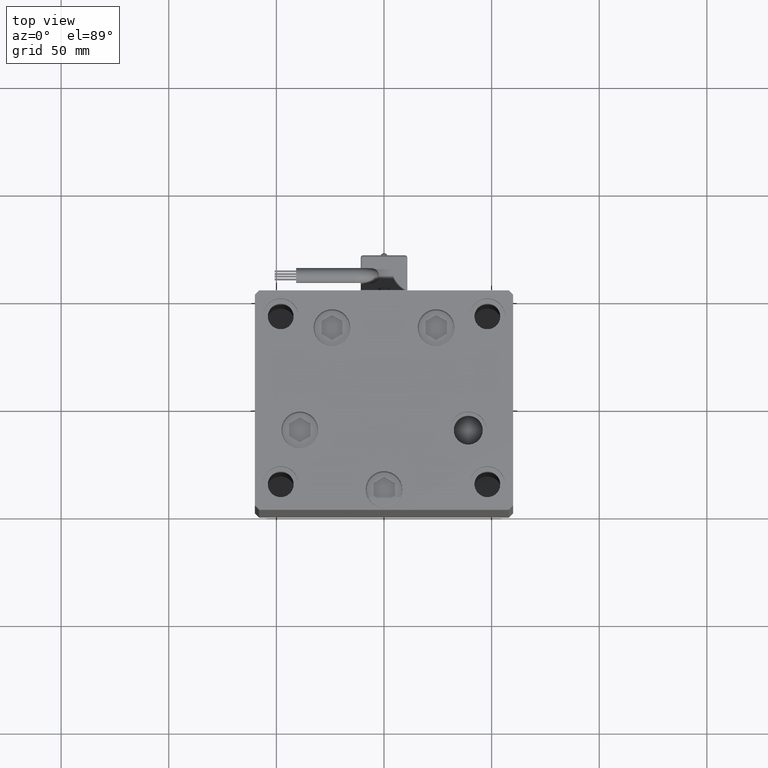
[diagram: clean part render]
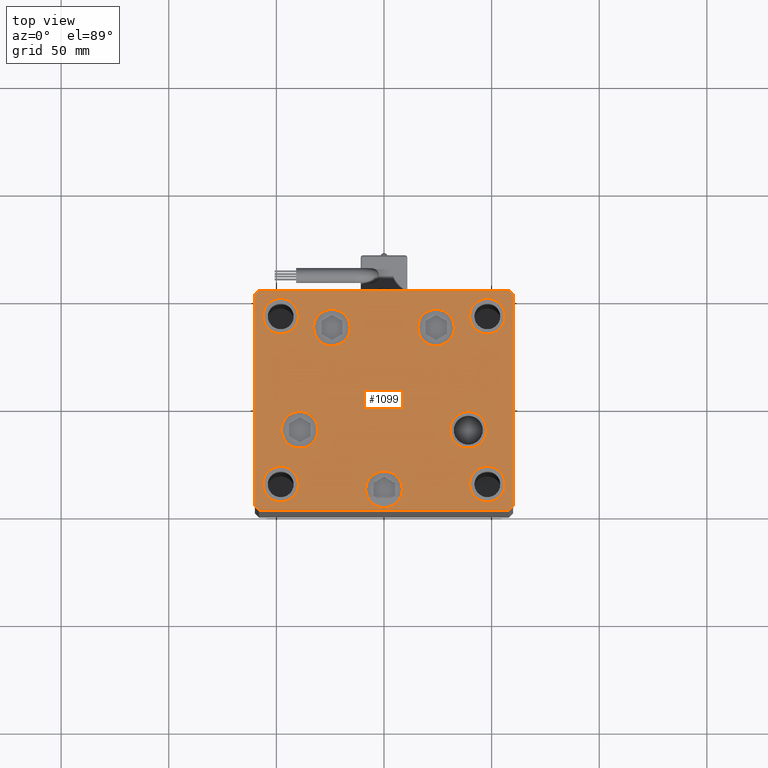
[diagram: same view with one face highlighted and labeled with its STEP entity id]
A machine part, top view. The second image highlights one B-rep face of the part: STEP entity #1099.
In plain terms, the highlighted planar face has unit normal (0, 0, 1).
Its self-contained STEP definition (entity closure, byte-faithful):
#112 = CARTESIAN_POINT ( 'NONE',  ( 48.00000000000000000, 38.99999999999999289, 0.000000000000000000 ) ) ;
#434 = CARTESIAN_POINT ( 'NONE',  ( -39.75000000000000711, -39.00000000000000000, 0.000000000000000000 ) ) ;
#558 = DIRECTION ( 'NONE',  ( 1.000000000000000000, 0.000000000000000000, 0.000000000000000000 ) ) ;
#723 = DIRECTION ( 'NONE',  ( 0.000000000000000000, -0.000000000000000000, -1.000000000000000000 ) ) ;
#727 = CARTESIAN_POINT ( 'NONE',  ( -48.00000000000000000, 39.00000000000000000, 0.000000000000000000 ) ) ;
#897 = ORIENTED_EDGE ( 'NONE', *, *, #45901, .T. ) ;
#1043 = CARTESIAN_POINT ( 'NONE',  ( -57.99999999999999289, 50.99999999999997868, 0.000000000000000000 ) ) ;
#1099 = ADVANCED_FACE ( 'NONE', ( #46894, #38730, #38457, #51239, #43079, #43615, #1224, #10180, #14524, #2038 ), #34914, .T. ) ;
#1187 = DIRECTION ( 'NONE',  ( 1.000000000000000000, 0.000000000000000000, 0.000000000000000000 ) ) ;
#1224 = FACE_BOUND ( 'NONE', #19232, .T. ) ;
#2038 = FACE_OUTER_BOUND ( 'NONE', #10919, .T. ) ;
#2090 = AXIS2_PLACEMENT_3D ( 'NONE', #23674, #19586, #558 ) ;
#2206 = CARTESIAN_POINT ( 'NONE',  ( 56.24999999999999289, -38.99999999999999289, 0.000000000000000000 ) ) ;
#2561 = ORIENTED_EDGE ( 'NONE', *, *, #52038, .F. ) ;
#2848 = CARTESIAN_POINT ( 'NONE',  ( 59.99999999999994316, 49.00000000000000000, 0.000000000000000000 ) ) ;
#3221 = VECTOR ( 'NONE', #52820, 1000.000000000000000 ) ;
#3396 = CARTESIAN_POINT ( 'NONE',  ( 57.99999999999993605, 51.00000000000000711, 0.000000000000000000 ) ) ;
#3406 = CARTESIAN_POINT ( 'NONE',  ( -39.75000000000000711, 39.00000000000000000, 0.000000000000000000 ) ) ;
#3460 = EDGE_LOOP ( 'NONE', ( #12076, #39726 ) ) ;
#3993 = AXIS2_PLACEMENT_3D ( 'NONE', #31157, #5864, #38491 ) ;
#4216 = VERTEX_POINT ( 'NONE', #37612 ) ;
#4966 = DIRECTION ( 'NONE',  ( 0.000000000000000000, 0.000000000000000000, 1.000000000000000000 ) ) ;
#5042 = DIRECTION ( 'NONE',  ( 0.000000000000000000, 0.000000000000000000, 1.000000000000000000 ) ) ;
#5248 = EDGE_CURVE ( 'NONE', #50367, #26316, #17673, .T. ) ;
#5372 = VERTEX_POINT ( 'NONE', #1043 ) ;
#5575 = DIRECTION ( 'NONE',  ( 1.000000000000000000, 0.000000000000000000, 0.000000000000000000 ) ) ;
#5864 = DIRECTION ( 'NONE',  ( 0.000000000000000000, -0.000000000000000000, -1.000000000000000000 ) ) ;
#5936 = DIRECTION ( 'NONE',  ( 0.000000000000000000, -0.000000000000000000, -1.000000000000000000 ) ) ;
#6187 = VERTEX_POINT ( 'NONE', #26987 ) ;
#6216 = AXIS2_PLACEMENT_3D ( 'NONE', #21369, #723, #13481 ) ;
#6504 = VERTEX_POINT ( 'NONE', #15154 ) ;
#6558 = AXIS2_PLACEMENT_3D ( 'NONE', #40745, #32582, #20864 ) ;
#6603 = CIRCLE ( 'NONE', #3993, 8.500000000000000000 ) ;
#6684 = AXIS2_PLACEMENT_3D ( 'NONE', #44223, #14323, #22756 ) ;
#6720 = DIRECTION ( 'NONE',  ( 0.000000000000000000, -0.000000000000000000, -1.000000000000000000 ) ) ;
#6727 = EDGE_LOOP ( 'NONE', ( #50048, #2561 ) ) ;
#6792 = EDGE_CURVE ( 'NONE', #28416, #6187, #43827, .T. ) ;
#6867 = EDGE_CURVE ( 'NONE', #6504, #5372, #36555, .T. ) ;
#7056 = CARTESIAN_POINT ( 'NONE',  ( -47.62657522565562829, -13.83333333333333925, 0.000000000000000000 ) ) ;
#7098 = CIRCLE ( 'NONE', #6216, 8.500000000000000000 ) ;
#7324 = DIRECTION ( 'NONE',  ( 0.7071067811865474617, -0.7071067811865474617, 0.000000000000000000 ) ) ;
#7524 = CARTESIAN_POINT ( 'NONE',  ( -56.24999999999999289, -39.00000000000000000, 0.000000000000000000 ) ) ;
#8027 = EDGE_CURVE ( 'NONE', #39483, #6504, #23493, .T. ) ;
#8130 = CARTESIAN_POINT ( 'NONE',  ( -60.00000000000000000, -49.00000000000000000, 0.000000000000000000 ) ) ;
#8175 = CIRCLE ( 'NONE', #13382, 8.500000000000000000 ) ;
#9229 = AXIS2_PLACEMENT_3D ( 'NONE', #14089, #5936, #30964 ) ;
#9559 = ORIENTED_EDGE ( 'NONE', *, *, #23077, .T. ) ;
#9842 = VERTEX_POINT ( 'NONE', #7056 ) ;
#9875 = CARTESIAN_POINT ( 'NONE',  ( 58.00000000000000000, -51.00000000000000711, 0.000000000000000000 ) ) ;
#10180 = FACE_BOUND ( 'NONE', #6727, .T. ) ;
#10231 = EDGE_CURVE ( 'NONE', #29172, #42426, #6603, .T. ) ;
#10373 = ORIENTED_EDGE ( 'NONE', *, *, #46465, .F. ) ;
#10430 = EDGE_CURVE ( 'NONE', #4216, #44299, #47610, .T. ) ;
#10705 = EDGE_CURVE ( 'NONE', #6187, #28416, #37016, .T. ) ;
#10812 = VERTEX_POINT ( 'NONE', #434 ) ;
#10919 = EDGE_LOOP ( 'NONE', ( #35826, #28829, #897, #38796, #24948, #36148, #27493, #36987 ) ) ;
#10983 = AXIS2_PLACEMENT_3D ( 'NONE', #112, #20756, #1187 ) ;
#11149 = EDGE_CURVE ( 'NONE', #47341, #38540, #52666, .T. ) ;
#11226 = DIRECTION ( 'NONE',  ( 0.000000000000000000, 0.000000000000000000, 1.000000000000000000 ) ) ;
#11708 = VECTOR ( 'NONE', #39284, 1000.000000000000000 ) ;
#11755 = LINE ( 'NONE', #36500, #3221 ) ;
#12076 = ORIENTED_EDGE ( 'NONE', *, *, #11149, .F. ) ;
#12198 = CARTESIAN_POINT ( 'NONE',  ( -24.19288941894912170, 33.71875000000000000, 0.000000000000000000 ) ) ;
#12294 = EDGE_CURVE ( 'NONE', #19099, #53225, #11755, .T. ) ;
#12414 = DIRECTION ( 'NONE',  ( 0.000000000000000000, 0.000000000000000000, 1.000000000000000000 ) ) ;
#13382 = AXIS2_PLACEMENT_3D ( 'NONE', #22843, #43505, #31021 ) ;
#13481 = DIRECTION ( 'NONE',  ( 1.000000000000000000, 0.000000000000000000, 0.000000000000000000 ) ) ;
#13612 = EDGE_CURVE ( 'NONE', #30384, #15955, #24864, .T. ) ;
#13803 = ORIENTED_EDGE ( 'NONE', *, *, #10705, .T. ) ;
#14089 = CARTESIAN_POINT ( 'NONE',  ( 5.082284216461515748E-15, -41.50000000000000000, 0.000000000000000000 ) ) ;
#14224 = DIRECTION ( 'NONE',  ( 1.000000000000000000, 0.000000000000000000, 0.000000000000000000 ) ) ;
#14248 = DIRECTION ( 'NONE',  ( 1.000000000000000000, 0.000000000000000000, 0.000000000000000000 ) ) ;
#14323 = DIRECTION ( 'NONE',  ( 0.000000000000000000, 0.000000000000000000, 1.000000000000000000 ) ) ;
#14524 = FACE_BOUND ( 'NONE', #3460, .T. ) ;
#14828 = CARTESIAN_POINT ( 'NONE',  ( 5.082284216461515748E-15, -41.50000000000000000, 0.000000000000000000 ) ) ;
#15154 = CARTESIAN_POINT ( 'NONE',  ( 57.99999999999993605, 51.00000000000000711, 0.000000000000000000 ) ) ;
#15392 = DIRECTION ( 'NONE',  ( 1.000000000000000000, 0.000000000000000000, 0.000000000000000000 ) ) ;
#15394 = CARTESIAN_POINT ( 'NONE',  ( 8.500000000000005329, -41.50000000000000000, 0.000000000000000000 ) ) ;
#15653 = CARTESIAN_POINT ( 'NONE',  ( -32.69288941894912170, 33.71875000000000000, 0.000000000000000000 ) ) ;
#15684 = EDGE_LOOP ( 'NONE', ( #19690, #30678 ) ) ;
#15955 = VERTEX_POINT ( 'NONE', #31555 ) ;
#16162 = CARTESIAN_POINT ( 'NONE',  ( -57.99999999999997868, -51.00000000000001421, 0.000000000000000000 ) ) ;
#16280 = LINE ( 'NONE', #8130, #48133 ) ;
#16546 = EDGE_CURVE ( 'NONE', #23697, #39483, #46459, .T. ) ;
#16558 = CARTESIAN_POINT ( 'NONE',  ( 39.75000000000000711, 38.99999999999999289, 0.000000000000000000 ) ) ;
#16810 = VERTEX_POINT ( 'NONE', #7524 ) ;
#16870 = AXIS2_PLACEMENT_3D ( 'NONE', #50378, #4966, #41679 ) ;
#17673 = CIRCLE ( 'NONE', #34188, 8.500000000000000000 ) ;
#17790 = DIRECTION ( 'NONE',  ( 1.000000000000000000, 0.000000000000000000, 0.000000000000000000 ) ) ;
#18006 = CARTESIAN_POINT ( 'NONE',  ( 59.99999999999994316, 49.00000000000000000, 0.000000000000000000 ) ) ;
#18312 = CARTESIAN_POINT ( 'NONE',  ( 0.000000000000000000, 0.000000000000000000, 0.000000000000000000 ) ) ;
#19044 = VERTEX_POINT ( 'NONE', #3406 ) ;
#19099 = VERTEX_POINT ( 'NONE', #16162 ) ;
#19232 = EDGE_LOOP ( 'NONE', ( #10373, #46587 ) ) ;
#19237 = AXIS2_PLACEMENT_3D ( 'NONE', #22658, #11226, #14224 ) ;
#19561 = CARTESIAN_POINT ( 'NONE',  ( -30.62657522565562829, -13.83333333333333748, 0.000000000000000000 ) ) ;
#19586 = DIRECTION ( 'NONE',  ( 0.000000000000000000, -0.000000000000000000, -1.000000000000000000 ) ) ;
#19690 = ORIENTED_EDGE ( 'NONE', *, *, #48553, .F. ) ;
#20336 = DIRECTION ( 'NONE',  ( 0.000000000000000000, -0.000000000000000000, -1.000000000000000000 ) ) ;
#20416 = DIRECTION ( 'NONE',  ( -0.7071067811865451302, -0.7071067811865500152, 0.000000000000000000 ) ) ;
#20756 = DIRECTION ( 'NONE',  ( 0.000000000000000000, 0.000000000000000000, 1.000000000000000000 ) ) ;
#20789 = CIRCLE ( 'NONE', #41648, 8.500000000000000000 ) ;
#20864 = DIRECTION ( 'NONE',  ( 1.000000000000000000, 0.000000000000000000, 0.000000000000000000 ) ) ;
#20988 = ORIENTED_EDGE ( 'NONE', *, *, #10231, .T. ) ;
#21227 = CIRCLE ( 'NONE', #16870, 8.249999999999992895 ) ;
#21369 = CARTESIAN_POINT ( 'NONE',  ( -39.12657522565562829, -13.83333333333333925, 0.000000000000000000 ) ) ;
#21794 = EDGE_LOOP ( 'NONE', ( #13803, #37985 ) ) ;
#22638 = CARTESIAN_POINT ( 'NONE',  ( -60.00000000000000000, -49.00000000000000000, 0.000000000000000000 ) ) ;
#22658 = CARTESIAN_POINT ( 'NONE',  ( 48.00000000000000000, -38.99999999999999289, 0.000000000000000000 ) ) ;
#22756 = DIRECTION ( 'NONE',  ( 1.000000000000000000, 0.000000000000000000, 0.000000000000000000 ) ) ;
#22763 = CARTESIAN_POINT ( 'NONE',  ( 32.69288941894911460, 33.71875000000000711, 0.000000000000000000 ) ) ;
#22843 = CARTESIAN_POINT ( 'NONE',  ( 24.19288941894911460, 33.71875000000000711, 0.000000000000000000 ) ) ;
#23077 = EDGE_CURVE ( 'NONE', #41074, #9842, #7098, .T. ) ;
#23126 = AXIS2_PLACEMENT_3D ( 'NONE', #31395, #30315, #17790 ) ;
#23270 = CARTESIAN_POINT ( 'NONE',  ( 30.62657522565563184, -13.83333333333332860, 0.000000000000000000 ) ) ;
#23493 = LINE ( 'NONE', #2848, #11708 ) ;
#23674 = CARTESIAN_POINT ( 'NONE',  ( 39.12657522565562829, -13.83333333333332860, 0.000000000000000000 ) ) ;
#23697 = VERTEX_POINT ( 'NONE', #25047 ) ;
#23717 = EDGE_CURVE ( 'NONE', #5372, #4216, #41638, .T. ) ;
#24420 = CARTESIAN_POINT ( 'NONE',  ( 39.75000000000000711, -38.99999999999999289, 0.000000000000000000 ) ) ;
#24864 = CIRCLE ( 'NONE', #23126, 8.499999999999992895 ) ;
#24948 = ORIENTED_EDGE ( 'NONE', *, *, #8027, .T. ) ;
#25047 = CARTESIAN_POINT ( 'NONE',  ( 60.00000000000001421, -48.99999999999999289, 0.000000000000000000 ) ) ;
#25427 = DIRECTION ( 'NONE',  ( 0.000000000000000000, -0.000000000000000000, -1.000000000000000000 ) ) ;
#25883 = EDGE_LOOP ( 'NONE', ( #53010, #49240 ) ) ;
#26316 = VERTEX_POINT ( 'NONE', #15653 ) ;
#26987 = CARTESIAN_POINT ( 'NONE',  ( -8.499999999999994671, -41.50000000000000000, 0.000000000000000000 ) ) ;
#27369 = EDGE_CURVE ( 'NONE', #9842, #41074, #20789, .T. ) ;
#27493 = ORIENTED_EDGE ( 'NONE', *, *, #23717, .T. ) ;
#28348 = CIRCLE ( 'NONE', #39673, 8.249999999999992895 ) ;
#28416 = VERTEX_POINT ( 'NONE', #15394 ) ;
#28829 = ORIENTED_EDGE ( 'NONE', *, *, #12294, .T. ) ;
#28849 = VERTEX_POINT ( 'NONE', #24420 ) ;
#29172 = VERTEX_POINT ( 'NONE', #22763 ) ;
#29786 = CARTESIAN_POINT ( 'NONE',  ( -39.12657522565562829, -13.83333333333333925, 0.000000000000000000 ) ) ;
#30240 = VECTOR ( 'NONE', #20416, 1000.000000000000114 ) ;
#30315 = DIRECTION ( 'NONE',  ( 0.000000000000000000, -0.000000000000000000, -1.000000000000000000 ) ) ;
#30384 = VERTEX_POINT ( 'NONE', #23270 ) ;
#30585 = DIRECTION ( 'NONE',  ( 1.000000000000000000, 0.000000000000000000, 0.000000000000000000 ) ) ;
#30678 = ORIENTED_EDGE ( 'NONE', *, *, #30723, .F. ) ;
#30723 = EDGE_CURVE ( 'NONE', #28849, #34302, #42681, .T. ) ;
#30964 = DIRECTION ( 'NONE',  ( 1.000000000000000000, 0.000000000000000000, 0.000000000000000000 ) ) ;
#30977 = CIRCLE ( 'NONE', #6558, 8.249999999999992895 ) ;
#31021 = DIRECTION ( 'NONE',  ( 1.000000000000000000, 0.000000000000000000, 0.000000000000000000 ) ) ;
#31157 = CARTESIAN_POINT ( 'NONE',  ( 24.19288941894911460, 33.71875000000000711, 0.000000000000000000 ) ) ;
#31318 = EDGE_LOOP ( 'NONE', ( #53499, #20988 ) ) ;
#31395 = CARTESIAN_POINT ( 'NONE',  ( 39.12657522565562829, -13.83333333333332860, 0.000000000000000000 ) ) ;
#31555 = CARTESIAN_POINT ( 'NONE',  ( 47.62657522565562118, -13.83333333333332682, 0.000000000000000000 ) ) ;
#32078 = ORIENTED_EDGE ( 'NONE', *, *, #13612, .T. ) ;
#32582 = DIRECTION ( 'NONE',  ( 0.000000000000000000, 0.000000000000000000, 1.000000000000000000 ) ) ;
#33020 = DIRECTION ( 'NONE',  ( -1.000000000000000000, -2.392722035830079958E-16, 0.000000000000000000 ) ) ;
#33122 = CARTESIAN_POINT ( 'NONE',  ( 15.69288941894910927, 33.71875000000000711, 0.000000000000000000 ) ) ;
#34188 = AXIS2_PLACEMENT_3D ( 'NONE', #12198, #20336, #41563 ) ;
#34207 = ORIENTED_EDGE ( 'NONE', *, *, #27369, .T. ) ;
#34264 = AXIS2_PLACEMENT_3D ( 'NONE', #14828, #48541, #36034 ) ;
#34302 = VERTEX_POINT ( 'NONE', #2206 ) ;
#34675 = CARTESIAN_POINT ( 'NONE',  ( 48.00000000000000000, 38.99999999999999289, 0.000000000000000000 ) ) ;
#34914 = PLANE ( 'NONE',  #46201 ) ;
#35156 = VECTOR ( 'NONE', #33020, 1000.000000000000000 ) ;
#35826 = ORIENTED_EDGE ( 'NONE', *, *, #40067, .T. ) ;
#35913 = CIRCLE ( 'NONE', #2090, 8.499999999999992895 ) ;
#36034 = DIRECTION ( 'NONE',  ( 1.000000000000000000, 0.000000000000000000, 0.000000000000000000 ) ) ;
#36148 = ORIENTED_EDGE ( 'NONE', *, *, #6867, .T. ) ;
#36500 = CARTESIAN_POINT ( 'NONE',  ( -57.99999999999997868, -51.00000000000001421, 0.000000000000000000 ) ) ;
#36555 = LINE ( 'NONE', #3396, #35156 ) ;
#36813 = EDGE_LOOP ( 'NONE', ( #34207, #9559 ) ) ;
#36987 = ORIENTED_EDGE ( 'NONE', *, *, #10430, .T. ) ;
#37016 = CIRCLE ( 'NONE', #9229, 8.500000000000000000 ) ;
#37612 = CARTESIAN_POINT ( 'NONE',  ( -60.00000000000000000, 48.99999999999995737, 0.000000000000000000 ) ) ;
#37832 = AXIS2_PLACEMENT_3D ( 'NONE', #34675, #5042, #5575 ) ;
#37985 = ORIENTED_EDGE ( 'NONE', *, *, #6792, .T. ) ;
#38140 = VERTEX_POINT ( 'NONE', #52300 ) ;
#38457 = FACE_BOUND ( 'NONE', #39123, .T. ) ;
#38491 = DIRECTION ( 'NONE',  ( 1.000000000000000000, 0.000000000000000000, 0.000000000000000000 ) ) ;
#38540 = VERTEX_POINT ( 'NONE', #16558 ) ;
#38606 = AXIS2_PLACEMENT_3D ( 'NONE', #727, #12414, #41771 ) ;
#38730 = FACE_BOUND ( 'NONE', #31318, .T. ) ;
#38796 = ORIENTED_EDGE ( 'NONE', *, *, #16546, .T. ) ;
#38842 = VECTOR ( 'NONE', #41025, 1000.000000000000000 ) ;
#39123 = EDGE_LOOP ( 'NONE', ( #32078, #50412 ) ) ;
#39284 = DIRECTION ( 'NONE',  ( -0.7071067811865487940, 0.7071067811865463515, 0.000000000000000000 ) ) ;
#39483 = VERTEX_POINT ( 'NONE', #18006 ) ;
#39673 = AXIS2_PLACEMENT_3D ( 'NONE', #44593, #48943, #39998 ) ;
#39726 = ORIENTED_EDGE ( 'NONE', *, *, #43886, .F. ) ;
#39961 = EDGE_CURVE ( 'NONE', #42426, #29172, #8175, .T. ) ;
#39998 = DIRECTION ( 'NONE',  ( 1.000000000000000000, 0.000000000000000000, 0.000000000000000000 ) ) ;
#40067 = EDGE_CURVE ( 'NONE', #44299, #19099, #16280, .T. ) ;
#40615 = EDGE_CURVE ( 'NONE', #19044, #38140, #42913, .T. ) ;
#40745 = CARTESIAN_POINT ( 'NONE',  ( -48.00000000000000000, -39.00000000000000000, 0.000000000000000000 ) ) ;
#41025 = DIRECTION ( 'NONE',  ( -7.080503983578803823E-16, 1.000000000000000000, 0.000000000000000000 ) ) ;
#41074 = VERTEX_POINT ( 'NONE', #19561 ) ;
#41104 = CARTESIAN_POINT ( 'NONE',  ( -57.99999999999999289, 50.99999999999997868, 0.000000000000000000 ) ) ;
#41563 = DIRECTION ( 'NONE',  ( 1.000000000000000000, 0.000000000000000000, 0.000000000000000000 ) ) ;
#41638 = LINE ( 'NONE', #41104, #30240 ) ;
#41648 = AXIS2_PLACEMENT_3D ( 'NONE', #29786, #25427, #30585 ) ;
#41679 = DIRECTION ( 'NONE',  ( 1.000000000000000000, 0.000000000000000000, 0.000000000000000000 ) ) ;
#41736 = CARTESIAN_POINT ( 'NONE',  ( 58.00000000000000000, -51.00000000000000711, 0.000000000000000000 ) ) ;
#41771 = DIRECTION ( 'NONE',  ( 1.000000000000000000, 0.000000000000000000, 0.000000000000000000 ) ) ;
#42135 = AXIS2_PLACEMENT_3D ( 'NONE', #48041, #6720, #15392 ) ;
#42426 = VERTEX_POINT ( 'NONE', #33122 ) ;
#42681 = CIRCLE ( 'NONE', #19237, 8.249999999999992895 ) ;
#42913 = CIRCLE ( 'NONE', #38606, 8.249999999999992895 ) ;
#43079 = FACE_BOUND ( 'NONE', #36813, .T. ) ;
#43246 = DIRECTION ( 'NONE',  ( 0.000000000000000000, -1.000000000000000000, 0.000000000000000000 ) ) ;
#43505 = DIRECTION ( 'NONE',  ( 0.000000000000000000, -0.000000000000000000, -1.000000000000000000 ) ) ;
#43593 = CARTESIAN_POINT ( 'NONE',  ( 56.24999999999999289, 38.99999999999999289, 0.000000000000000000 ) ) ;
#43615 = FACE_BOUND ( 'NONE', #15684, .T. ) ;
#43827 = CIRCLE ( 'NONE', #34264, 8.500000000000000000 ) ;
#43886 = EDGE_CURVE ( 'NONE', #38540, #47341, #43943, .T. ) ;
#43943 = CIRCLE ( 'NONE', #37832, 8.249999999999992895 ) ;
#44223 = CARTESIAN_POINT ( 'NONE',  ( -48.00000000000000000, -39.00000000000000000, 0.000000000000000000 ) ) ;
#44299 = VERTEX_POINT ( 'NONE', #22638 ) ;
#44593 = CARTESIAN_POINT ( 'NONE',  ( 48.00000000000000000, -38.99999999999999289, 0.000000000000000000 ) ) ;
#45826 = LINE ( 'NONE', #41736, #48243 ) ;
#45901 = EDGE_CURVE ( 'NONE', #53225, #23697, #45826, .T. ) ;
#46201 = AXIS2_PLACEMENT_3D ( 'NONE', #18312, #51508, #14248 ) ;
#46228 = EDGE_CURVE ( 'NONE', #16810, #10812, #30977, .T. ) ;
#46367 = DIRECTION ( 'NONE',  ( 0.7071067811865474617, 0.7071067811865474617, 0.000000000000000000 ) ) ;
#46459 = LINE ( 'NONE', #50266, #38842 ) ;
#46465 = EDGE_CURVE ( 'NONE', #10812, #16810, #50835, .T. ) ;
#46497 = CIRCLE ( 'NONE', #42135, 8.500000000000000000 ) ;
#46564 = EDGE_CURVE ( 'NONE', #26316, #50367, #46497, .T. ) ;
#46587 = ORIENTED_EDGE ( 'NONE', *, *, #46228, .F. ) ;
#46894 = FACE_BOUND ( 'NONE', #25883, .T. ) ;
#47341 = VERTEX_POINT ( 'NONE', #43593 ) ;
#47432 = VECTOR ( 'NONE', #43246, 1000.000000000000000 ) ;
#47610 = LINE ( 'NONE', #51406, #47432 ) ;
#48041 = CARTESIAN_POINT ( 'NONE',  ( -24.19288941894912170, 33.71875000000000000, 0.000000000000000000 ) ) ;
#48133 = VECTOR ( 'NONE', #7324, 1000.000000000000114 ) ;
#48243 = VECTOR ( 'NONE', #46367, 1000.000000000000114 ) ;
#48541 = DIRECTION ( 'NONE',  ( 0.000000000000000000, -0.000000000000000000, -1.000000000000000000 ) ) ;
#48553 = EDGE_CURVE ( 'NONE', #34302, #28849, #28348, .T. ) ;
#48943 = DIRECTION ( 'NONE',  ( 0.000000000000000000, 0.000000000000000000, 1.000000000000000000 ) ) ;
#49240 = ORIENTED_EDGE ( 'NONE', *, *, #5248, .T. ) ;
#49650 = EDGE_CURVE ( 'NONE', #15955, #30384, #35913, .T. ) ;
#50048 = ORIENTED_EDGE ( 'NONE', *, *, #40615, .F. ) ;
#50266 = CARTESIAN_POINT ( 'NONE',  ( 60.00000000000001421, -48.99999999999999289, 0.000000000000000000 ) ) ;
#50367 = VERTEX_POINT ( 'NONE', #53639 ) ;
#50378 = CARTESIAN_POINT ( 'NONE',  ( -48.00000000000000000, 39.00000000000000000, 0.000000000000000000 ) ) ;
#50412 = ORIENTED_EDGE ( 'NONE', *, *, #49650, .T. ) ;
#50835 = CIRCLE ( 'NONE', #6684, 8.249999999999992895 ) ;
#51239 = FACE_BOUND ( 'NONE', #21794, .T. ) ;
#51406 = CARTESIAN_POINT ( 'NONE',  ( -60.00000000000000000, 48.99999999999995737, 0.000000000000000000 ) ) ;
#51508 = DIRECTION ( 'NONE',  ( -0.000000000000000000, 0.000000000000000000, 1.000000000000000000 ) ) ;
#52038 = EDGE_CURVE ( 'NONE', #38140, #19044, #21227, .T. ) ;
#52300 = CARTESIAN_POINT ( 'NONE',  ( -56.24999999999999289, 39.00000000000000000, 0.000000000000000000 ) ) ;
#52666 = CIRCLE ( 'NONE', #10983, 8.249999999999992895 ) ;
#52820 = DIRECTION ( 'NONE',  ( 1.000000000000000000, 1.196361017915039486E-16, 0.000000000000000000 ) ) ;
#53010 = ORIENTED_EDGE ( 'NONE', *, *, #46564, .T. ) ;
#53225 = VERTEX_POINT ( 'NONE', #9875 ) ;
#53499 = ORIENTED_EDGE ( 'NONE', *, *, #39961, .T. ) ;
#53639 = CARTESIAN_POINT ( 'NONE',  ( -15.69288941894911993, 33.71875000000000000, 0.000000000000000000 ) ) ;